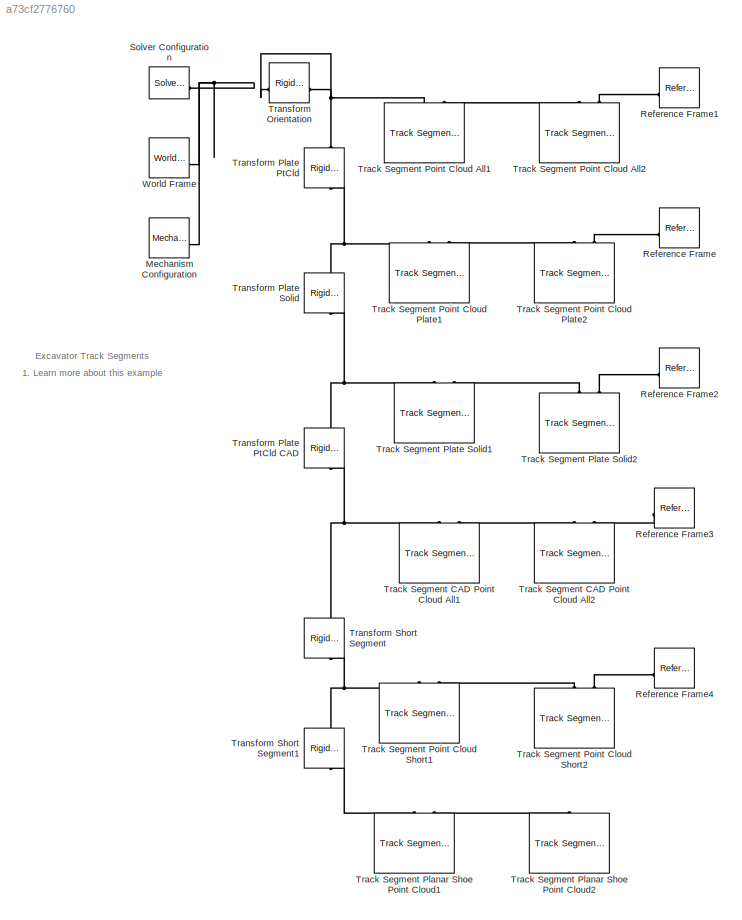
MODEL slx_a73cf2776760
KIND model
CONFIG AbsTol = 1e-3
CONFIG EnableMultiTasking = on
CONFIG SolverName = ode23t
BLOCK [Reference] Mechanism Configuration  REF=sm_lib/Utilities/Mechanism
Configuration
  AttributesFormatString = Gravity: %<GravityVector>
  SourceBlock = sm_lib/Utilities/Mechanism\nConfiguration
  SourceType = Mechanism\nConfiguration
BLOCK [Reference] Reference Frame  REF=sm_lib/Frames and
Transforms/Reference
Frame
  SourceBlock = sm_lib/Frames and\nTransforms/Reference\nFrame
  SourceType = Reference\nFrame
BLOCK [Reference] Reference Frame1  REF=sm_lib/Frames and
Transforms/Reference
Frame
  SourceBlock = sm_lib/Frames and\nTransforms/Reference\nFrame
  SourceType = Reference\nFrame
BLOCK [Reference] Reference Frame2  REF=sm_lib/Frames and
Transforms/Reference
Frame
  SourceBlock = sm_lib/Frames and\nTransforms/Reference\nFrame
  SourceType = Reference\nFrame
BLOCK [Reference] Reference Frame3  REF=sm_lib/Frames and
Transforms/Reference
Frame
  SourceBlock = sm_lib/Frames and\nTransforms/Reference\nFrame
  SourceType = Reference\nFrame
BLOCK [Reference] Reference Frame4  REF=sm_lib/Frames and
Transforms/Reference
Frame
  SourceBlock = sm_lib/Frames and\nTransforms/Reference\nFrame
  SourceType = Reference\nFrame
BLOCK [Reference] Solver Configuration  REF=nesl_utility/Solver
Configuration
  SourceBlock = nesl_utility/Solver\nConfiguration
  SourceType = Solver\nConfiguration
BLOCK [Reference] Track Segment CAD Point Cloud All1  REF=sm_trackV_lib_chain_segment/Track Segment CAD
Shoe Point Cloud Contact
  SourceBlock = sm_trackV_lib_chain_segment/Track Segment CAD\nShoe Point Cloud Contact
  SourceType = Track Segment, Point Cloud Contact
BLOCK [Reference] Track Segment CAD Point Cloud All2  REF=sm_trackV_lib_chain_segment/Track Segment CAD
Shoe Point Cloud Contact
  SourceBlock = sm_trackV_lib_chain_segment/Track Segment CAD\nShoe Point Cloud Contact
  SourceType = Track Segment, Point Cloud Contact
BLOCK [Reference] Track Segment Planar Shoe Point Cloud1  REF=sm_trackV_lib_chain_segment/Track Segment
Shoe Point Cloud Contact Planar
  SourceBlock = sm_trackV_lib_chain_segment/Track Segment\nShoe Point Cloud Contact Planar
  SourceType = Track Segment, Point Cloud Contact
BLOCK [Reference] Track Segment Planar Shoe Point Cloud2  REF=sm_trackV_lib_chain_segment/Track Segment
Shoe Point Cloud Contact Planar
  SourceBlock = sm_trackV_lib_chain_segment/Track Segment\nShoe Point Cloud Contact Planar
  SourceType = Track Segment, Point Cloud Contact
BLOCK [Reference] Track Segment Plate Solid1  REF=sm_trackV_lib_chain_segment/Track Segment
Shoe Plate Solid Contact
  SourceBlock = sm_trackV_lib_chain_segment/Track Segment\nShoe Plate Solid Contact
  SourceType = Track Segment with Shoe Plate Solid Contact
BLOCK [Reference] Track Segment Plate Solid2  REF=sm_trackV_lib_chain_segment/Track Segment
Shoe Plate Solid Contact
  SourceBlock = sm_trackV_lib_chain_segment/Track Segment\nShoe Plate Solid Contact
  SourceType = Track Segment with Shoe Plate Solid Contact
BLOCK [Reference] Track Segment Point Cloud All1  REF=sm_trackV_lib_chain_segment/Track Segment
Shoe Point Cloud Contact
  SourceBlock = sm_trackV_lib_chain_segment/Track Segment\nShoe Point Cloud Contact
  SourceType = Track Segment, Point Cloud Contact
BLOCK [Reference] Track Segment Point Cloud All2  REF=sm_trackV_lib_chain_segment/Track Segment
Shoe Point Cloud Contact
  SourceBlock = sm_trackV_lib_chain_segment/Track Segment\nShoe Point Cloud Contact
  SourceType = Track Segment, Point Cloud Contact
BLOCK [Reference] Track Segment Point Cloud Plate1  REF=sm_trackV_lib_chain_segment/Track Segment
Shoe Point Cloud Contact
  SourceBlock = sm_trackV_lib_chain_segment/Track Segment\nShoe Point Cloud Contact
  SourceType = Track Segment, Point Cloud Contact
BLOCK [Reference] Track Segment Point Cloud Plate2  REF=sm_trackV_lib_chain_segment/Track Segment
Shoe Point Cloud Contact
  SourceBlock = sm_trackV_lib_chain_segment/Track Segment\nShoe Point Cloud Contact
  SourceType = Track Segment, Point Cloud Contact
BLOCK [Reference] Track Segment Point Cloud Short1  REF=sm_trackV_lib_chain_segment/Track Segment
Shoe Point Cloud Contact
  SourceBlock = sm_trackV_lib_chain_segment/Track Segment\nShoe Point Cloud Contact
  SourceType = Track Segment, Point Cloud Contact
BLOCK [Reference] Track Segment Point Cloud Short2  REF=sm_trackV_lib_chain_segment/Track Segment
Shoe Point Cloud Contact
  SourceBlock = sm_trackV_lib_chain_segment/Track Segment\nShoe Point Cloud Contact
  SourceType = Track Segment, Point Cloud Contact
BLOCK [Reference] Transform Orientation  REF=sm_lib/Frames and
Transforms/Rigid
Transform
  Commented = on
  SourceBlock = sm_lib/Frames and\nTransforms/Rigid\nTransform
  SourceType = Rigid\nTransform
BLOCK [Reference] Transform Plate PtCld  REF=sm_lib/Frames and
Transforms/Rigid
Transform
  NameLocation = left
  SourceBlock = sm_lib/Frames and\nTransforms/Rigid\nTransform
  SourceType = Rigid\nTransform
BLOCK [Reference] Transform Plate PtCld CAD  REF=sm_lib/Frames and
Transforms/Rigid
Transform
  NameLocation = left
  SourceBlock = sm_lib/Frames and\nTransforms/Rigid\nTransform
  SourceType = Rigid\nTransform
BLOCK [Reference] Transform Plate Solid  REF=sm_lib/Frames and
Transforms/Rigid
Transform
  NameLocation = left
  SourceBlock = sm_lib/Frames and\nTransforms/Rigid\nTransform
  SourceType = Rigid\nTransform
BLOCK [Reference] Transform Short Segment  REF=sm_lib/Frames and
Transforms/Rigid
Transform
  NameLocation = left
  SourceBlock = sm_lib/Frames and\nTransforms/Rigid\nTransform
  SourceType = Rigid\nTransform
BLOCK [Reference] Transform Short Segment1  REF=sm_lib/Frames and
Transforms/Rigid
Transform
  NameLocation = left
  SourceBlock = sm_lib/Frames and\nTransforms/Rigid\nTransform
  SourceType = Rigid\nTransform
BLOCK [Reference] World Frame  REF=sm_lib/Frames and
Transforms/World Frame
  SourceBlock = sm_lib/Frames and\nTransforms/World Frame
  SourceType = World Frame
ANNOTATION (root): 1. Learn more about this example
ANNOTATION (root): Excavator Track Segments
PNET net1: Mechanism Configuration:RConn1 -- Solver Configuration:RConn1 -- Track Segment Point Cloud All1:LConn1 -- Transform Orientation:LConn1 -- Transform Orientation:RConn1 -- Transform Plate PtCld:LConn1 -- World Frame:RConn1
PLINE Reference Frame1:RConn1 -- Track Segment Point Cloud All2:LConn2
PLINE Reference Frame2:RConn1 -- Track Segment Plate Solid2:LConn2
PLINE Reference Frame3:RConn1 -- Track Segment CAD Point Cloud All2:LConn2
PLINE Reference Frame4:RConn1 -- Track Segment Point Cloud Short2:LConn2
PLINE Reference Frame:RConn1 -- Track Segment Point Cloud Plate2:LConn2
PNET net2: Track Segment CAD Point Cloud All1:LConn1 -- Transform Plate PtCld CAD:RConn1 -- Transform Short Segment:LConn1
PLINE Track Segment CAD Point Cloud All1:LConn2 -- Track Segment CAD Point Cloud All2:LConn1
PLINE Track Segment Planar Shoe Point Cloud1:LConn1 -- Transform Short Segment1:RConn1
PLINE Track Segment Planar Shoe Point Cloud1:LConn2 -- Track Segment Planar Shoe Point Cloud2:LConn1
PNET net3: Track Segment Plate Solid1:LConn1 -- Transform Plate PtCld CAD:LConn1 -- Transform Plate Solid:RConn1
PLINE Track Segment Plate Solid1:LConn2 -- Track Segment Plate Solid2:LConn1
PLINE Track Segment Point Cloud All1:LConn2 -- Track Segment Point Cloud All2:LConn1
PNET net4: Track Segment Point Cloud Plate1:LConn1 -- Transform Plate PtCld:RConn1 -- Transform Plate Solid:LConn1
PLINE Track Segment Point Cloud Plate1:LConn2 -- Track Segment Point Cloud Plate2:LConn1
PNET net5: Track Segment Point Cloud Short1:LConn1 -- Transform Short Segment1:LConn1 -- Transform Short Segment:RConn1
PLINE Track Segment Point Cloud Short1:LConn2 -- Track Segment Point Cloud Short2:LConn1
note: PNET lines group multi-terminal physical nets as a canonical sorted terminal list (undirected conserving connections); 2-terminal nets keep the pairwise PLINE form
